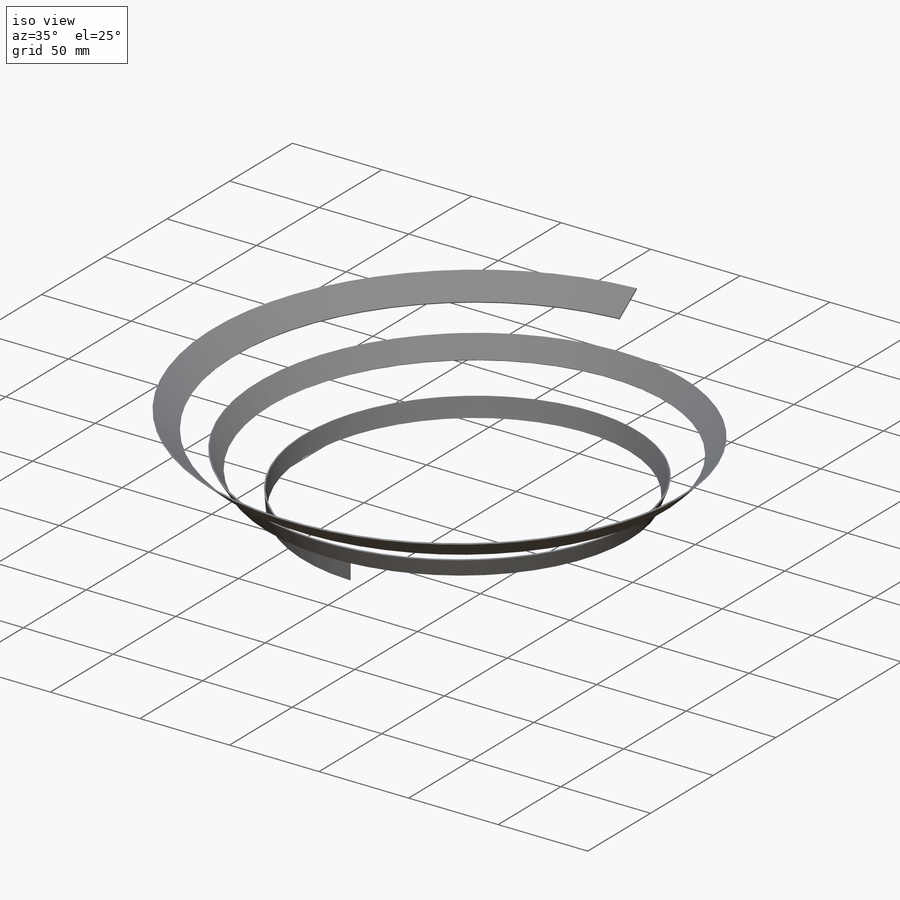
[diagram: iso view]
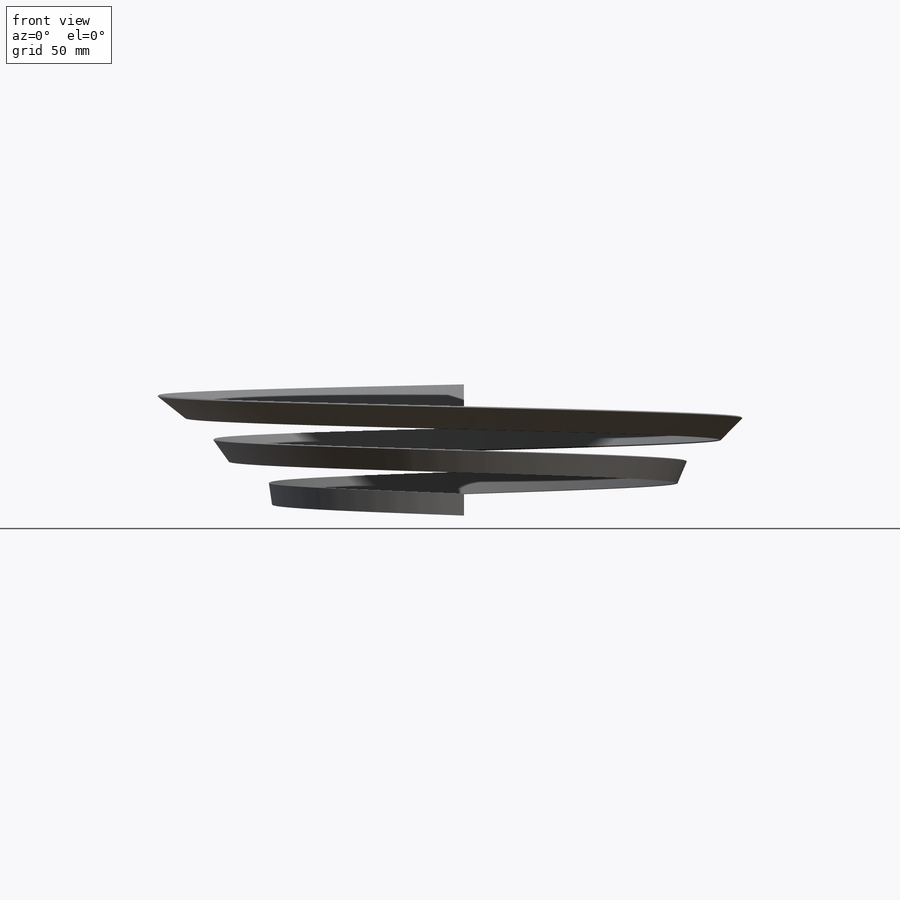
[diagram: front view]
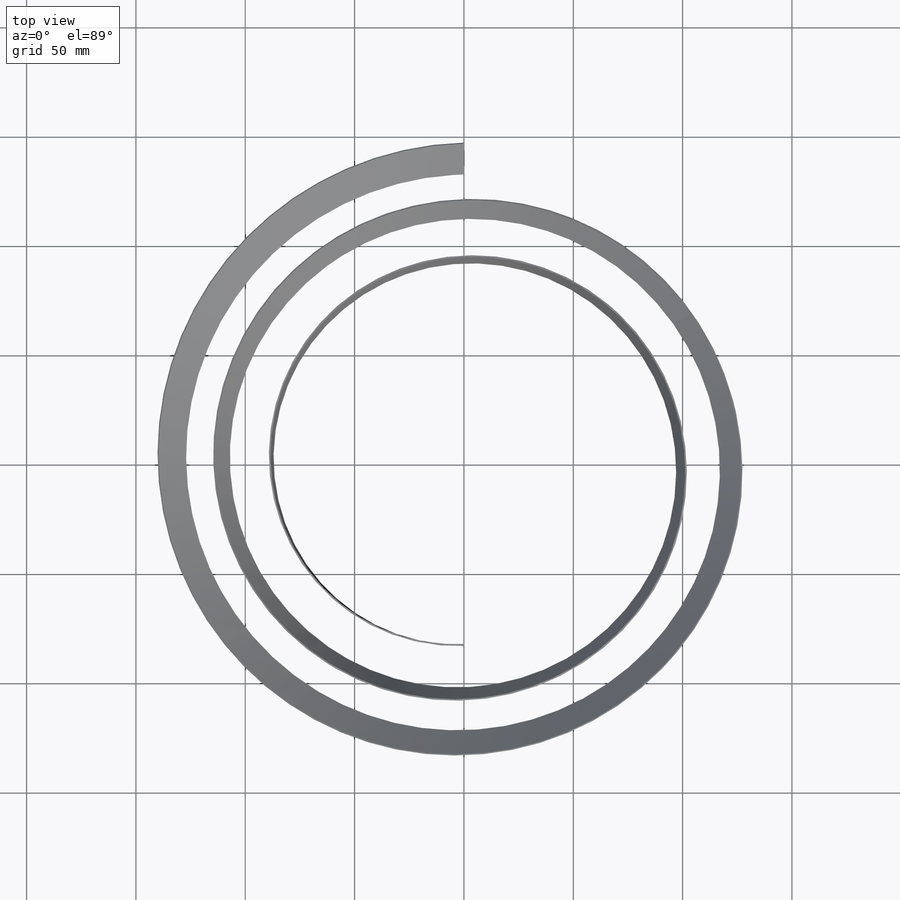
[diagram: top view]
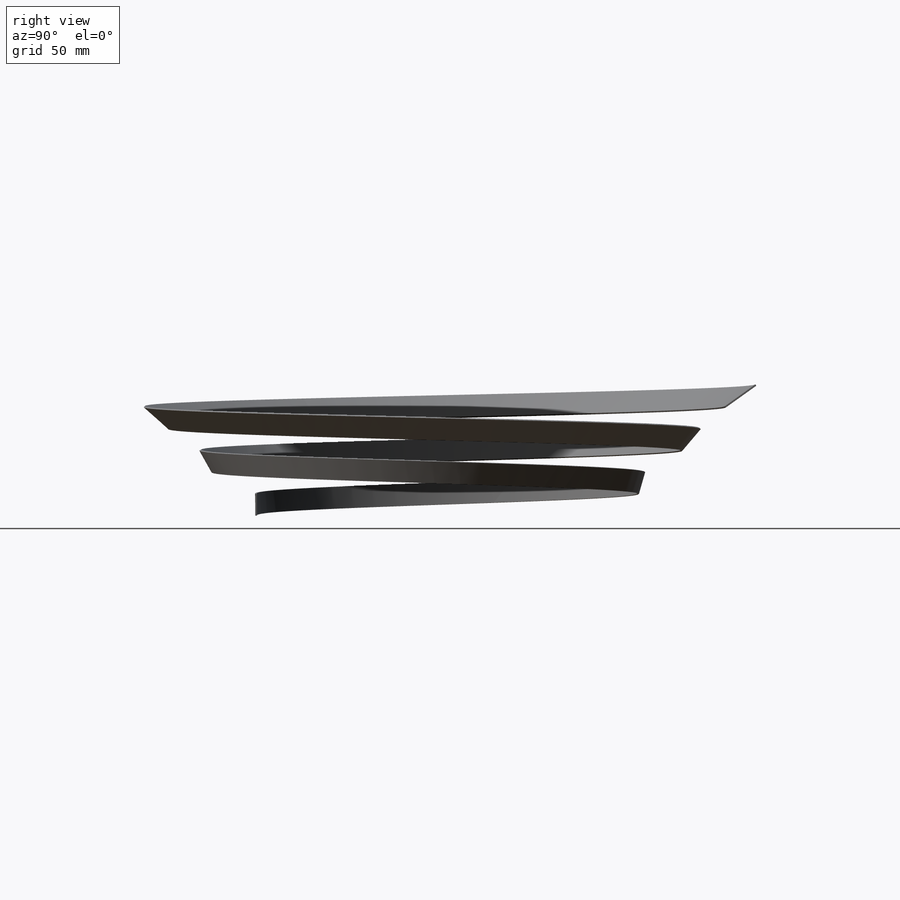
[diagram: right view]
SOLIDWORKS PART (.sldprt)
format: sldprt  version: not decoded by parser v0  size: 838,144 bytes
history: native  units: mm
features: sketch x11, plane x5, material x1, helix x1, sheet_metal_op x1 + 1 further entry (+8 scaffold rows collapsed; 1 parser-record rows omitted)
feature tree (29):
  scaffold x8  (default folders/planes/origin — collapsed)
  material  "Material <nicht festgelegt>"
  plane  "Ebene vorne"
  plane  "Ebene oben"
  plane  "Ebene rechts"
  sketch  "Skizze2"  dims[D1=~44.739241mm]
  helix  "Spirale/Helix1"  Pitch=50mm
  plane  "Ebene1"  Offset=10mm
  sketch  "Skizze4"  dims[D1=~42.959669mm Spirale/Helix3=0.0 D3=50.0mm D4=20.0mm D5=2500.0mm D6=52.0deg D7=0.0deg]
  sketch  "3D-Skizze5"
  sketch  "3D-Skizze6"
  sketch  "3D-Skizze7"
  sheet_metal_op  "Blech1"
  plane  "Ebene3"  Offset=5mm
  sketch  "Skizze13"  dims[D1=~72.637716mm Spirale/Helix4=0.0 D3=50.0mm D4=20.0mm D5=2500.0mm D6=47.0deg D7=0.0deg]
  sketch  "3D-Skizze8"
  sketch  "Skizze15"  dims[D1=~42.989246mm Spirale/Helix5=0.0 D3=50.0mm D4=20.0mm D5=2500.0mm D6=45.0deg D7=0.0deg]
  sketch  "3D-Skizze14"
  "Abwicklung1"
  sketch  "Biegung-Linien1"
  sketch  "Rahmen1"
  parser-record x1  (decoder bookkeeping rows leaked as tree rows — omitted from the tree; the rows remain in map.json)
decode coverage: 5 of 13 modeling features carry decoded parameters; 1 rows unclassified (native names shown)
note: ~ marks probable driven/reference dimensions
note: suppression state not decoded; provenance and decode notes live in map.json
